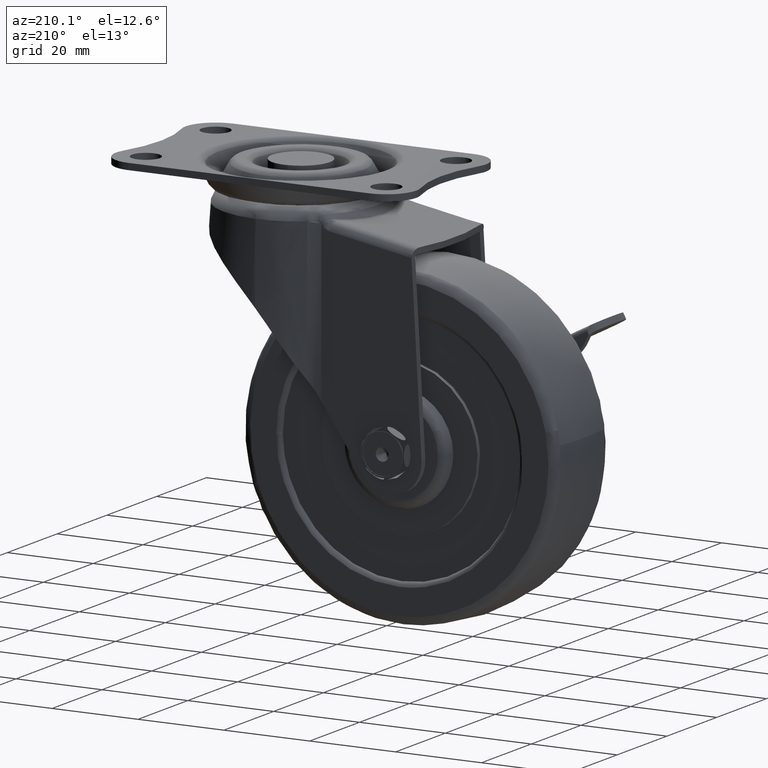
[diagram: clean part render]
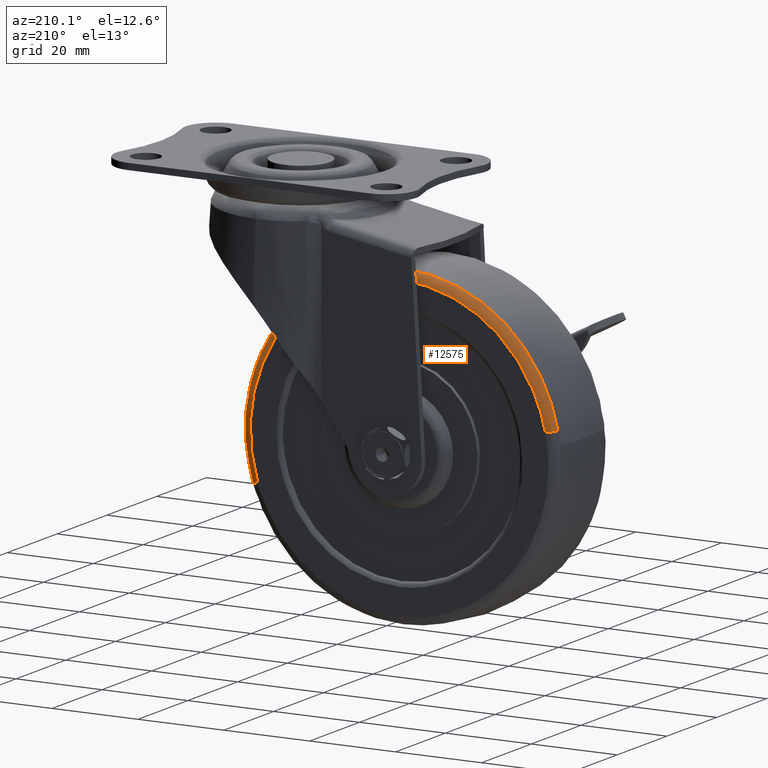
[diagram: same view with one face highlighted and labeled with its STEP entity id]
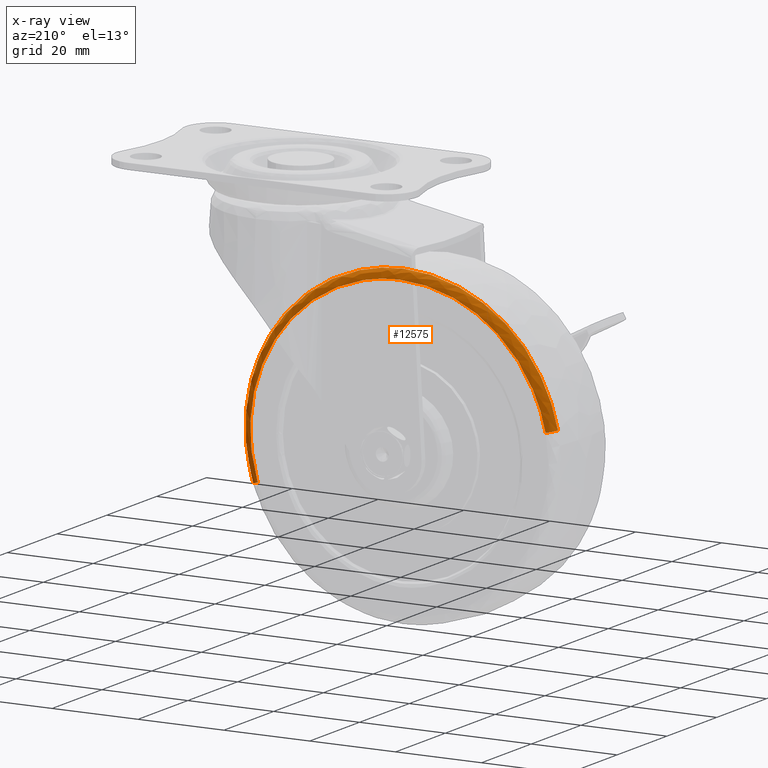
[diagram: x-ray of the same camera — body ghosted, the highlighted face saturated]
A machine part, auxiliary view. The second image highlights one B-rep face of the part: STEP entity #12575.
The next image is the same camera in x-ray: the body ghosted, the highlighted face saturated — about 0% of this face is hidden behind the body in this view.
In plain terms, the highlighted face is a freeform B-spline surface patch.
Its self-contained STEP definition (entity closure, byte-faithful):
#12450=CARTESIAN_POINT('',(3.892243866301913,10.495975621435585,-63.782869248114402));
#12451=CARTESIAN_POINT('',(4.516850129292395,10.495975621435583,-61.877560611912514));
#12452=CARTESIAN_POINT('',(4.917284028202268,10.495975621435582,-59.912875732458254));
#12453=CARTESIAN_POINT('',(11.830163760660536,10.495975621435585,-25.995591704255997));
#12454=CARTESIAN_POINT('',(-22.087120267541735,10.495975621435582,-19.082711971797739));
#12455=CARTESIAN_POINT('',(-56.004404295744003,10.495975621435585,-12.169832239339474));
#12456=CARTESIAN_POINT('',(-62.917284028202268,10.495975621435582,-46.087116267541738));
#12457=CARTESIAN_POINT('',(5.693906568294828,10.616436163832217,-64.373497866533057));
#12458=CARTESIAN_POINT('',(6.352725450285562,10.616436163832217,-62.363826526479734));
#12459=CARTESIAN_POINT('',(6.775092994805384,10.616436163832216,-60.291526627421739));
#12460=CARTESIAN_POINT('',(14.066623622227144,10.616436163832223,-24.516433632616380));
#12461=CARTESIAN_POINT('',(-21.708469372578236,10.616436163832216,-17.224903005194616));
#12462=CARTESIAN_POINT('',(-57.483562367383634,10.616436163832223,-9.933372377772862));
#12463=CARTESIAN_POINT('',(-64.775092994805377,10.616436163832216,-45.708465372578246));
#12464=CARTESIAN_POINT('',(5.900718478988511,8.729116988163483,-64.441295813923816));
#12465=CARTESIAN_POINT('',(6.563464609457803,8.729116988163483,-62.419644734175115));
#12466=CARTESIAN_POINT('',(6.988349905581216,8.729116988163483,-60.334991763813079));
#12467=CARTESIAN_POINT('',(14.323345669394289,8.729116988163481,-24.346641858231870));
#12468=CARTESIAN_POINT('',(-21.665004236186924,8.729116988163483,-17.011646094418786));
#12469=CARTESIAN_POINT('',(-57.653354141768133,8.729116988163481,-9.676650330605717));
#12470=CARTESIAN_POINT('',(-64.988349905581217,8.729116988163483,-45.665000236186934));
#12478=(BOUNDED_SURFACE()B_SPLINE_SURFACE(2,2,((#12450,#12457,#12464),(#12451,#12458,#12465),(#12452,#12459,#12466),(#12453,#12460,#12467),(#12454,#12461,#12468),(#12455,#12462,#12469),(#12456,#12463,#12470)),.UNSPECIFIED.,.F.,.F.,.U.)B_SPLINE_SURFACE_WITH_KNOTS((3,2,2,3),(3,3),(0.0,4.868262379258943,65.721600154261040,126.574937929263100),(0.0,3.193986324946856),.UNSPECIFIED.)GEOMETRIC_REPRESENTATION_ITEM()RATIONAL_B_SPLINE_SURFACE(((0.874161681658930,0.635090591159397,0.877741576023326),(0.892142512233971,0.648153914065257,0.895796042260275),(0.913548259030142,0.663705486128207,0.917289450542792),(0.645976168901378,0.469310649951969,0.648621590789690),(0.913548259030142,0.663705486128207,0.917289450542792),(0.645976168901378,0.469310649951969,0.648621590789690),(0.913548259030142,0.663705486128207,0.917289450542792)))REPRESENTATION_ITEM('')SURFACE());
#12479=CARTESIAN_POINT('',(5.883193989566747,8.854158044439625,-64.435555218397184));
#12480=VERTEX_POINT('',#12479);
#12481=CARTESIAN_POINT('',(-29.0,8.854141093694016,-16.290194342498040));
#12482=VERTEX_POINT('',#12481);
#12483=CARTESIAN_POINT('',(5.883193989566747,8.854158044439627,-64.435555218397184));
#12484=CARTESIAN_POINT('',(7.709797956960436,8.854156093197055,-58.863656492274558));
#12485=CARTESIAN_POINT('',(7.709797880606840,8.854154036345131,-52.999993969618103));
#12486=CARTESIAN_POINT('',(7.709797402590719,8.854141159304289,-16.290194456037121));
#12487=CARTESIAN_POINT('',(-29.0,8.854141093694016,-16.290194342498040));
#12495=(BOUNDED_CURVE()B_SPLINE_CURVE(2,(#12483,#12484,#12485,#12486,#12487),.UNSPECIFIED.,.F.,.U.)B_SPLINE_CURVE_WITH_KNOTS((3,2,3),(0.197031387441462,0.250000000000000,0.500000000000000),.UNSPECIFIED.)CURVE()GEOMETRIC_REPRESENTATION_ITEM()RATIONAL_B_SPLINE_CURVE((0.902183232231047,0.937943410286588,1.0,0.707106781186548,1.0))REPRESENTATION_ITEM(''));
#12496=EDGE_CURVE('',#12480,#12482,#12495,.T.);
#12497=ORIENTED_EDGE('',*,*,#12496,.F.);
#12498=CARTESIAN_POINT('',(4.012745525888147,10.499999999999771,-63.822376731880851));
#12499=VERTEX_POINT('',#12498);
#12500=CARTESIAN_POINT('',(4.012745525888147,10.499999999999769,-63.822376731880851));
#12501=CARTESIAN_POINT('',(5.601804893691588,10.499998771545529,-64.343309031529515));
#12502=CARTESIAN_POINT('',(5.883193989566747,8.854158044439625,-64.435555218397198));
#12510=(BOUNDED_CURVE()B_SPLINE_CURVE(2,(#12500,#12501,#12502),.UNSPECIFIED.,.F.,.U.)B_SPLINE_CURVE_WITH_KNOTS((3,3),(-1.697350211128295,-0.291164531990810),.UNSPECIFIED.)CURVE()GEOMETRIC_REPRESENTATION_ITEM()RATIONAL_B_SPLINE_CURVE((0.853440941373978,0.655975081983147,0.856693175451086))REPRESENTATION_ITEM(''));
#12511=EDGE_CURVE('',#12499,#12480,#12510,.T.);
#12512=ORIENTED_EDGE('',*,*,#12511,.F.);
#12513=CARTESIAN_POINT('',(-29.0,10.500000000000000,-18.258590666000600));
#12514=VERTEX_POINT('',#12513);
#12515=CARTESIAN_POINT('',(4.012745525888147,10.499999999999769,-63.822376731880851));
#12516=CARTESIAN_POINT('',(5.741405333999399,10.500000000000000,-58.549245857155384));
#12517=CARTESIAN_POINT('',(5.741405333999399,10.500000000000000,-52.999996000000003));
#12518=CARTESIAN_POINT('',(5.741405333999398,10.500000000000002,-18.258590666000604));
#12519=CARTESIAN_POINT('',(-29.0,10.500000000000000,-18.258590666000600));
#12527=(BOUNDED_CURVE()B_SPLINE_CURVE(2,(#12515,#12516,#12517,#12518,#12519),.UNSPECIFIED.,.F.,.U.)B_SPLINE_CURVE_WITH_KNOTS((3,2,3),(0.197031393961499,0.250000000000000,0.500000000000000),.UNSPECIFIED.)CURVE()GEOMETRIC_REPRESENTATION_ITEM()RATIONAL_B_SPLINE_CURVE((0.902183241034666,0.937943417925287,1.0,0.707106781186548,1.0))REPRESENTATION_ITEM(''));
#12528=EDGE_CURVE('',#12499,#12514,#12527,.T.);
#12529=ORIENTED_EDGE('',*,*,#12528,.T.);
#12530=CARTESIAN_POINT('',(-63.041542209741714,10.499999999999771,-46.061790479407797));
#12531=VERTEX_POINT('',#12530);
#12532=CARTESIAN_POINT('',(-29.0,10.500000000000000,-18.258590666000600));
#12533=CARTESIAN_POINT('',(-57.374808988388082,10.500000000000000,-18.258590666000600));
#12534=CARTESIAN_POINT('',(-63.041542209741706,10.499999999999769,-46.061790479407804));
#12542=(BOUNDED_CURVE()B_SPLINE_CURVE(2,(#12532,#12533,#12534),.UNSPECIFIED.,.F.,.U.)B_SPLINE_CURVE_WITH_KNOTS((3,3),(0.500000000000000,0.715767038485839),.UNSPECIFIED.)CURVE()GEOMETRIC_REPRESENTATION_ITEM()RATIONAL_B_SPLINE_CURVE((1.0,0.747213190336146,0.930770870987918))REPRESENTATION_ITEM(''));
#12543=EDGE_CURVE('',#12514,#12531,#12542,.T.);
#12544=ORIENTED_EDGE('',*,*,#12543,.T.);
#12545=CARTESIAN_POINT('',(-64.970288811795285,8.854148925443415,-45.668710298322139));
#12546=VERTEX_POINT('',#12545);
#12547=CARTESIAN_POINT('',(-63.041542209741714,10.499999999999769,-46.061790479407804));
#12548=CARTESIAN_POINT('',(-64.680133550648222,10.499998853692885,-45.727834072768822));
#12549=CARTESIAN_POINT('',(-64.970288811795285,8.854148925443415,-45.668710298322139));
#12557=(BOUNDED_CURVE()B_SPLINE_CURVE(2,(#12547,#12548,#12549),.UNSPECIFIED.,.F.,.U.)B_SPLINE_CURVE_WITH_KNOTS((3,3),(-1.697350211116203,-0.291159352736342),.UNSPECIFIED.)CURVE()GEOMETRIC_REPRESENTATION_ITEM()RATIONAL_B_SPLINE_CURVE((0.891893951794725,0.685530223722117,0.895294265156319))REPRESENTATION_ITEM(''));
#12558=EDGE_CURVE('',#12531,#12546,#12557,.T.);
#12559=ORIENTED_EDGE('',*,*,#12558,.T.);
#12560=CARTESIAN_POINT('',(-29.0,8.854141093694016,-16.290194342498040));
#12561=CARTESIAN_POINT('',(-58.982504803979587,8.854144811347737,-16.290196249831251));
#12562=CARTESIAN_POINT('',(-64.970288811795285,8.854148925443415,-45.668710298322132));
#12570=(BOUNDED_CURVE()B_SPLINE_CURVE(2,(#12560,#12561,#12562),.UNSPECIFIED.,.F.,.U.)B_SPLINE_CURVE_WITH_KNOTS((3,3),(0.500000000000000,0.715767165658738),.UNSPECIFIED.)CURVE()GEOMETRIC_REPRESENTATION_ITEM()RATIONAL_B_SPLINE_CURVE((1.0,0.747213041343827,0.930771087365535))REPRESENTATION_ITEM(''));
#12571=EDGE_CURVE('',#12482,#12546,#12570,.T.);
#12572=ORIENTED_EDGE('',*,*,#12571,.F.);
#12573=EDGE_LOOP('',(#12497,#12512,#12529,#12544,#12559,#12572));
#12574=FACE_OUTER_BOUND('',#12573,.T.);
#12575=ADVANCED_FACE('',(#12574),#12478,.T.);